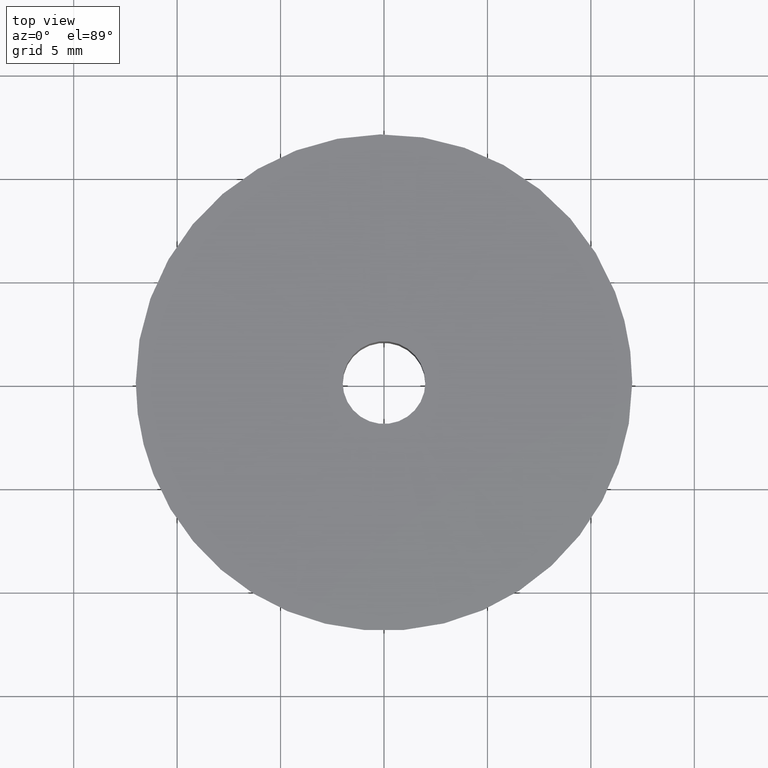
[diagram: clean part render]
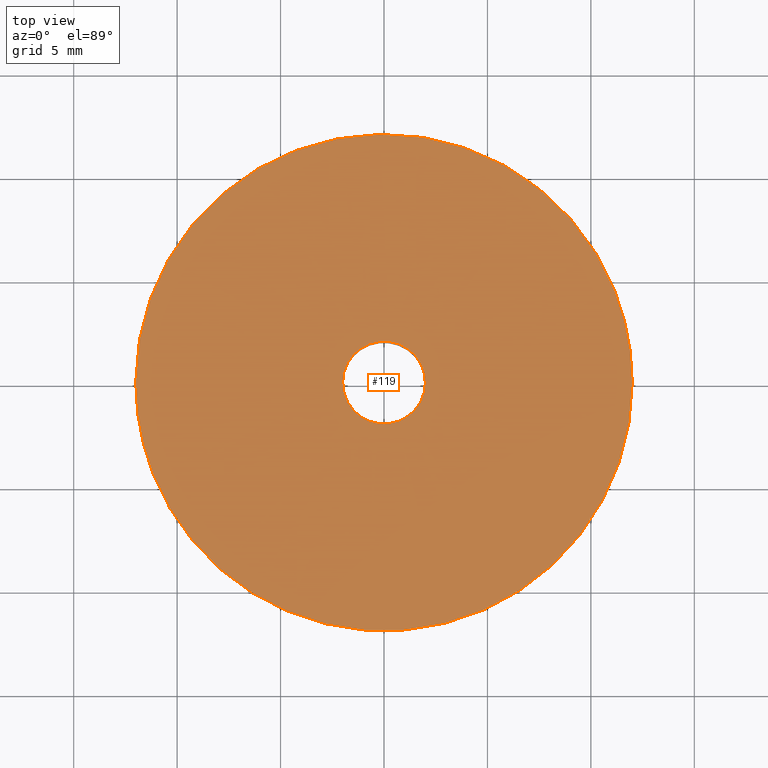
[diagram: same view with one face highlighted and labeled with its STEP entity id]
A machine part, top view. The second image highlights one B-rep face of the part: STEP entity #119.
In plain terms, the highlighted planar face has unit normal (0, 0, -1).
Its self-contained STEP definition (entity closure, byte-faithful):
#119=ADVANCED_FACE('',(#206,#207),#205,.F.);
#205=PLANE('',#379);
#206=FACE_OUTER_BOUND('',#380,.T.);
#207=FACE_BOUND('',#381,.T.);
#376=CARTESIAN_POINT('',(1.44000000000E+001,-1.51244447844E+001,1.00000000000E+001));
#377=DIRECTION('',(0.00000000000E+000,0.00000000000E+000,-1.00000000000E+000));
#378=DIRECTION('',(-1.00000000000E+000,0.00000000000E+000,0.00000000000E+000));
#379=AXIS2_PLACEMENT_3D('',#376,#377,#378);
#380=EDGE_LOOP('',(#526,#527,#528,#529,#530));
#381=EDGE_LOOP('',(#531,#532));
#526=ORIENTED_EDGE('',*,*,#604,.F.);
#527=ORIENTED_EDGE('',*,*,#605,.F.);
#528=ORIENTED_EDGE('',*,*,#606,.F.);
#529=ORIENTED_EDGE('',*,*,#607,.F.);
#530=ORIENTED_EDGE('',*,*,#608,.F.);
#531=ORIENTED_EDGE('',*,*,#609,.T.);
#532=ORIENTED_EDGE('',*,*,#610,.T.);
#604=EDGE_CURVE('',#741,#742,#743,.T.);
#605=EDGE_CURVE('',#749,#741,#750,.T.);
#606=EDGE_CURVE('',#756,#749,#757,.T.);
#607=EDGE_CURVE('',#763,#756,#764,.T.);
#608=EDGE_CURVE('',#742,#763,#770,.T.);
#609=EDGE_CURVE('',#776,#777,#778,.T.);
#610=EDGE_CURVE('',#777,#776,#784,.T.);
#741=VERTEX_POINT('',#1002);
#742=VERTEX_POINT('',#1003);
#743=CIRCLE('',#1007,1.19999992086E+001);
#749=VERTEX_POINT('',#1008);
#750=CIRCLE('',#1012,1.19999986397E+001);
#756=VERTEX_POINT('',#1013);
#757=CIRCLE('',#1017,1.19999993741E+001);
#763=VERTEX_POINT('',#1018);
#764=CIRCLE('',#1022,1.20000000000E+001);
#770=CIRCLE('',#1026,1.20000000000E+001);
#776=VERTEX_POINT('',#1027);
#777=VERTEX_POINT('',#1028);
#778=CIRCLE('',#1032,2.00000000000E+000);
#784=CIRCLE('',#1036,2.00000000000E+000);
#1002=CARTESIAN_POINT('',(-1.11583738648E+001,-4.41482432258E+000,9.99999606358E+000));
#1003=CARTESIAN_POINT('',(-1.20000000000E+001,0.00000000000E+000,1.00000000000E+001));
#1004=CARTESIAN_POINT('',(-7.91445470938E-007,1.98905207327E-006,9.99999803179E+000));
#1005=DIRECTION('',(-1.64017526572E-007,8.60369228197E-007,-1.00000000000E+000));
#1006=DIRECTION('',(9.29864484105E-001,3.67902216900E-001,1.64017673676E-007));
#1007=AXIS2_PLACEMENT_3D('',#1004,#1005,#1006);
#1008=CARTESIAN_POINT('',(9.41502212956E-001,-1.19630078286E+001,9.99999640080E+000));
#1009=CARTESIAN_POINT('',(-3.51152686484E-007,-6.70123860402E-007,9.99999623219E+000));
#1010=DIRECTION('',(2.00623568289E-008,-1.25153666998E-008,-1.00000000000E+000));
#1011=DIRECTION('',(-7.84585559032E-002,9.96917376218E-001,-1.40508500775E-008));
#1012=AXIS2_PLACEMENT_3D('',#1009,#1010,#1011);
#1013=CARTESIAN_POINT('',(1.20000000000E+001,0.00000000000E+000,1.00000000000E+001));
#1014=CARTESIAN_POINT('',(6.25933945564E-007,1.43460043844E-007,9.99999820040E+000));
#1015=DIRECTION('',(1.49966673738E-007,1.62232940337E-007,-1.00000000000E+000));
#1016=DIRECTION('',(-1.00000000000E+000,1.19550042773E-008,-1.49966671798E-007));
#1017=AXIS2_PLACEMENT_3D('',#1014,#1015,#1016);
#1018=CARTESIAN_POINT('',(1.11576632223E+001,4.41662217279E+000,1.00000000000E+001));
#1019=CARTESIAN_POINT('',(0.00000000000E+000,0.00000000000E+000,1.00000000000E+001));
#1020=DIRECTION('',(6.60305643312E-017,2.35470765630E-016,-1.00000000000E+000));
#1021=DIRECTION('',(-9.29864402291E-001,-3.67902423683E-001,-1.48029736617E-016));
#1022=AXIS2_PLACEMENT_3D('',#1019,#1020,#1021);
#1023=CARTESIAN_POINT('',(0.00000000000E+000,0.00000000000E+000,1.00000000000E+001));
#1024=DIRECTION('',(6.60305643312E-017,2.35470765630E-016,-1.00000000000E+000));
#1025=DIRECTION('',(-9.29864402291E-001,-3.67902423683E-001,-1.48029736617E-016));
#1026=AXIS2_PLACEMENT_3D('',#1023,#1024,#1025);
#1027=CARTESIAN_POINT('',(2.36067743038E-001,-1.98601913906E+000,1.00000000000E+001));
#1028=CARTESIAN_POINT('',(-2.36068469314E-001,1.98601905273E+000,1.00000000000E+001));
#1029=CARTESIAN_POINT('',(-5.55111512313E-016,-3.33066907388E-016,1.00000000000E+001));
#1030=DIRECTION('',(9.76996261670E-015,-5.77861428570E-016,-1.00000000000E+000));
#1031=DIRECTION('',(1.18033871519E-001,-9.93009569528E-001,1.72700844067E-015));
#1032=AXIS2_PLACEMENT_3D('',#1029,#1030,#1031);
#1033=CARTESIAN_POINT('',(-5.55111512313E-016,-3.33066907388E-016,1.00000000000E+001));
#1034=DIRECTION('',(9.76996261670E-015,-5.77861428570E-016,-1.00000000000E+000));
#1035=DIRECTION('',(1.18033871519E-001,-9.93009569528E-001,1.72700844067E-015));
#1036=AXIS2_PLACEMENT_3D('',#1033,#1034,#1035);